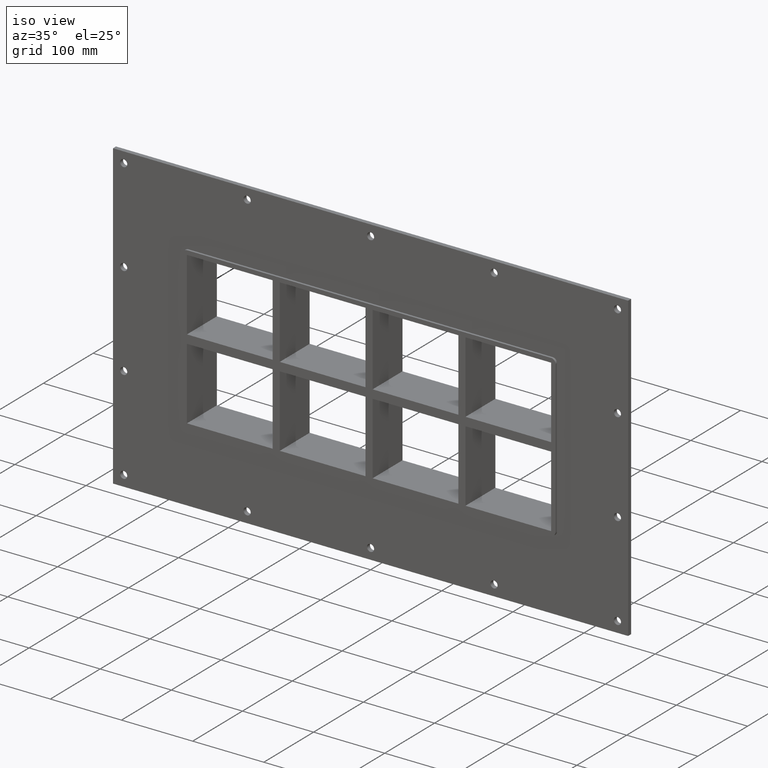
[diagram: clean part render]
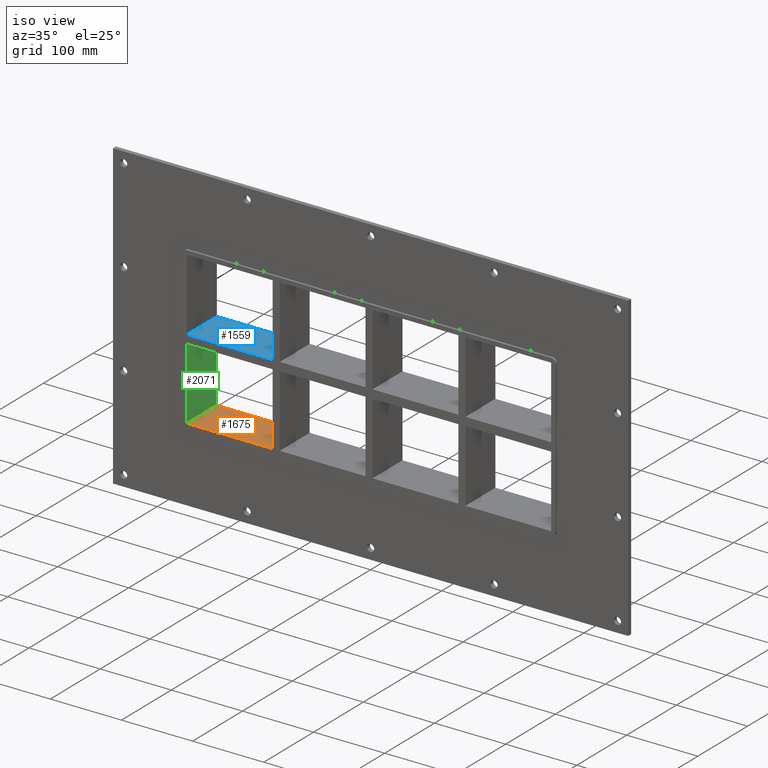
[diagram: same view with three faces highlighted in distinct colors, each labeled with its STEP entity id]
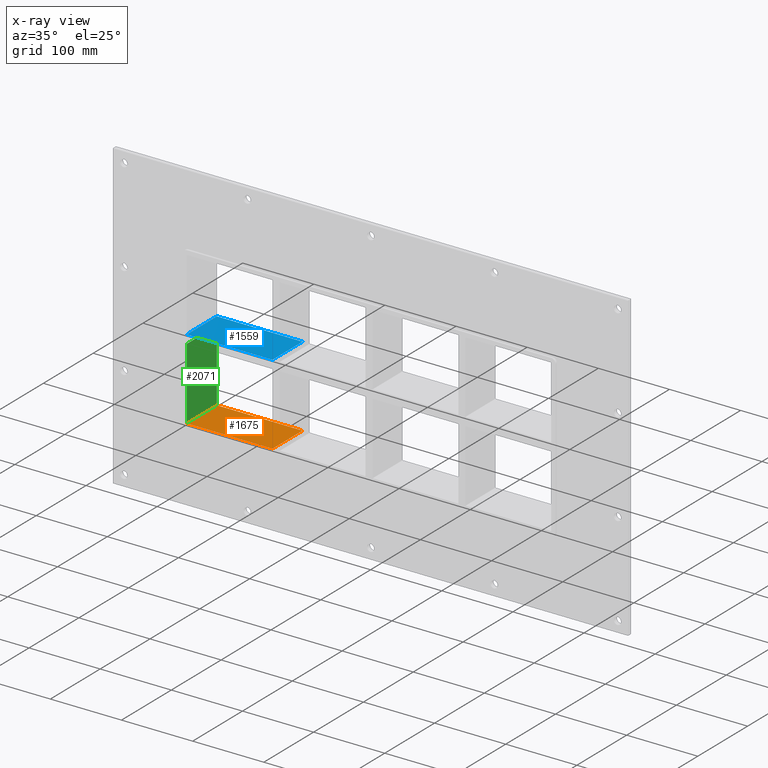
[diagram: x-ray of the same camera — body ghosted, the three highlighted faces saturated]
A machine part, iso view with three faces highlighted in distinct colors.
The next image is the same camera in x-ray (body ghosted, the three faces saturated) — at least one of them is partly hidden behind the body in this view.
Their STEP definitions:

[orange] entity #1675 — the highlighted planar face has unit normal (0, 0, -1).
#1096=CARTESIAN_POINT('',(-135.50000000000142,-3.0,-107.0));
#1097=VERTEX_POINT('',#1096);
#1104=CARTESIAN_POINT('',(-256.00000000000006,-3.0,-107.0));
#1105=VERTEX_POINT('',#1104);
#1106=CARTESIAN_POINT('',(-135.50000000000142,-3.0,-107.0));
#1107=DIRECTION('',(-1.0,0.0,0.0));
#1108=VECTOR('',#1107,120.49999999999864);
#1109=LINE('',#1106,#1108);
#1110=EDGE_CURVE('',#1097,#1105,#1109,.T.);
#1354=CARTESIAN_POINT('',(-256.00000000000006,57.0,-107.0));
#1355=VERTEX_POINT('',#1354);
#1362=CARTESIAN_POINT('',(-135.50000000000142,57.0,-107.0));
#1363=VERTEX_POINT('',#1362);
#1364=CARTESIAN_POINT('',(-256.00000000000006,57.0,-107.0));
#1365=DIRECTION('',(1.0,0.0,0.0));
#1366=VECTOR('',#1365,120.49999999999864);
#1367=LINE('',#1364,#1366);
#1368=EDGE_CURVE('',#1355,#1363,#1367,.T.);
#1637=CARTESIAN_POINT('',(-135.50000000000142,-3.0,-107.0));
#1638=DIRECTION('',(0.0,1.0,0.0));
#1639=VECTOR('',#1638,60.000000000000007);
#1640=LINE('',#1637,#1639);
#1641=EDGE_CURVE('',#1097,#1363,#1640,.T.);
#1659=CARTESIAN_POINT('',(255.99999999999997,0.0,-107.0));
#1660=DIRECTION('',(0.0,0.0,-1.0));
#1661=DIRECTION('',(-1.0,0.0,0.0));
#1662=AXIS2_PLACEMENT_3D('',#1659,#1660,#1661);
#1663=PLANE('',#1662);
#1664=ORIENTED_EDGE('',*,*,#1641,.T.);
#1665=ORIENTED_EDGE('',*,*,#1368,.F.);
#1666=CARTESIAN_POINT('',(-256.0,-3.0,-107.0));
#1667=DIRECTION('',(0.0,1.0,0.0));
#1668=VECTOR('',#1667,60.0);
#1669=LINE('',#1666,#1668);
#1670=EDGE_CURVE('',#1105,#1355,#1669,.T.);
#1671=ORIENTED_EDGE('',*,*,#1670,.F.);
#1672=ORIENTED_EDGE('',*,*,#1110,.F.);
#1673=EDGE_LOOP('',(#1664,#1665,#1671,#1672));
#1674=FACE_OUTER_BOUND('',#1673,.T.);
#1675=ADVANCED_FACE('',(#1674),#1663,.F.);

[blue] entity #1559 — the highlighted planar face has unit normal (0, 0, 1).
#1052=CARTESIAN_POINT('',(-255.99999999999972,-3.0,5.999999999999943));
#1053=VERTEX_POINT('',#1052);
#1070=CARTESIAN_POINT('',(-135.50000000000142,-3.0,5.999999999999943));
#1071=VERTEX_POINT('',#1070);
#1078=CARTESIAN_POINT('',(-255.99999999999972,-3.0,5.999999999999943));
#1079=DIRECTION('',(1.0,0.0,0.0));
#1080=VECTOR('',#1079,120.49999999999832);
#1081=LINE('',#1078,#1080);
#1082=EDGE_CURVE('',#1053,#1071,#1081,.T.);
#1318=CARTESIAN_POINT('',(-255.99999999999972,57.0,5.999999999999943));
#1319=VERTEX_POINT('',#1318);
#1320=CARTESIAN_POINT('',(-135.50000000000142,57.0,5.999999999999943));
#1321=VERTEX_POINT('',#1320);
#1322=CARTESIAN_POINT('',(-255.99999999999972,57.0,5.999999999999943));
#1323=DIRECTION('',(1.0,0.0,0.0));
#1324=VECTOR('',#1323,120.49999999999832);
#1325=LINE('',#1322,#1324);
#1326=EDGE_CURVE('',#1319,#1321,#1325,.T.);
#1538=CARTESIAN_POINT('',(-255.99999999999972,-3.0,5.999999999999943));
#1539=DIRECTION('',(0.0,0.0,1.0));
#1540=DIRECTION('',(1.0,0.0,0.0));
#1541=AXIS2_PLACEMENT_3D('',#1538,#1539,#1540);
#1542=PLANE('',#1541);
#1543=CARTESIAN_POINT('',(-135.50000000000142,57.0,5.999999999999943));
#1544=DIRECTION('',(0.0,-1.0,0.0));
#1545=VECTOR('',#1544,60.0);
#1546=LINE('',#1543,#1545);
#1547=EDGE_CURVE('',#1321,#1071,#1546,.T.);
#1548=ORIENTED_EDGE('',*,*,#1547,.F.);
#1549=ORIENTED_EDGE('',*,*,#1326,.F.);
#1550=CARTESIAN_POINT('',(-256.0,-3.0,5.999999999999943));
#1551=DIRECTION('',(0.0,1.0,0.0));
#1552=VECTOR('',#1551,60.000000000000007);
#1553=LINE('',#1550,#1552);
#1554=EDGE_CURVE('',#1053,#1319,#1553,.T.);
#1555=ORIENTED_EDGE('',*,*,#1554,.F.);
#1556=ORIENTED_EDGE('',*,*,#1082,.T.);
#1557=EDGE_LOOP('',(#1548,#1549,#1555,#1556));
#1558=FACE_OUTER_BOUND('',#1557,.T.);
#1559=ADVANCED_FACE('',(#1558),#1542,.T.);

[green] entity #2071 — the highlighted planar face has unit normal (-1, 0, 0).
#1088=CARTESIAN_POINT('',(-255.99999999999972,-3.0,-6.000000000009322));
#1089=VERTEX_POINT('',#1088);
#1104=CARTESIAN_POINT('',(-256.00000000000006,-3.0,-107.0));
#1105=VERTEX_POINT('',#1104);
#1112=CARTESIAN_POINT('',(-256.0,-3.0,-107.0));
#1113=DIRECTION('',(0.0,0.0,1.0));
#1114=VECTOR('',#1113,100.99999999999068);
#1115=LINE('',#1112,#1114);
#1116=EDGE_CURVE('',#1105,#1089,#1115,.T.);
#1352=CARTESIAN_POINT('',(-255.99999999999972,57.0,-6.000000000009322));
#1353=VERTEX_POINT('',#1352);
#1354=CARTESIAN_POINT('',(-256.00000000000006,57.0,-107.0));
#1355=VERTEX_POINT('',#1354);
#1356=CARTESIAN_POINT('',(-256.0,57.0,-6.000000000009322));
#1357=DIRECTION('',(0.0,0.0,-1.0));
#1358=VECTOR('',#1357,100.99999999999068);
#1359=LINE('',#1356,#1358);
#1360=EDGE_CURVE('',#1353,#1355,#1359,.T.);
#1516=CARTESIAN_POINT('',(-256.0,57.000000000000007,-6.000000000009322));
#1517=DIRECTION('',(0.0,-1.0,0.0));
#1518=VECTOR('',#1517,60.000000000000007);
#1519=LINE('',#1516,#1518);
#1520=EDGE_CURVE('',#1353,#1089,#1519,.T.);
#1666=CARTESIAN_POINT('',(-256.0,-3.0,-107.0));
#1667=DIRECTION('',(0.0,1.0,0.0));
#1668=VECTOR('',#1667,60.0);
#1669=LINE('',#1666,#1668);
#1670=EDGE_CURVE('',#1105,#1355,#1669,.T.);
#2060=CARTESIAN_POINT('',(-256.0,0.0,-107.0));
#2061=DIRECTION('',(-1.0,0.0,0.0));
#2062=DIRECTION('',(0.0,0.0,1.0));
#2063=AXIS2_PLACEMENT_3D('',#2060,#2061,#2062);
#2064=PLANE('',#2063);
#2065=ORIENTED_EDGE('',*,*,#1520,.T.);
#2066=ORIENTED_EDGE('',*,*,#1116,.F.);
#2067=ORIENTED_EDGE('',*,*,#1670,.T.);
#2068=ORIENTED_EDGE('',*,*,#1360,.F.);
#2069=EDGE_LOOP('',(#2065,#2066,#2067,#2068));
#2070=FACE_OUTER_BOUND('',#2069,.T.);
#2071=ADVANCED_FACE('',(#2070),#2064,.F.);